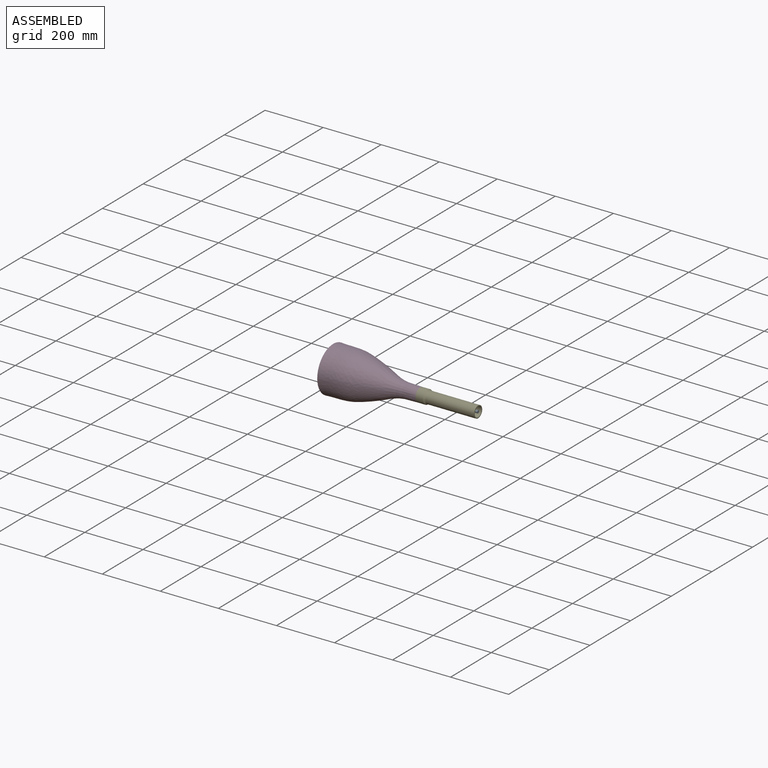
[diagram: assembled view]
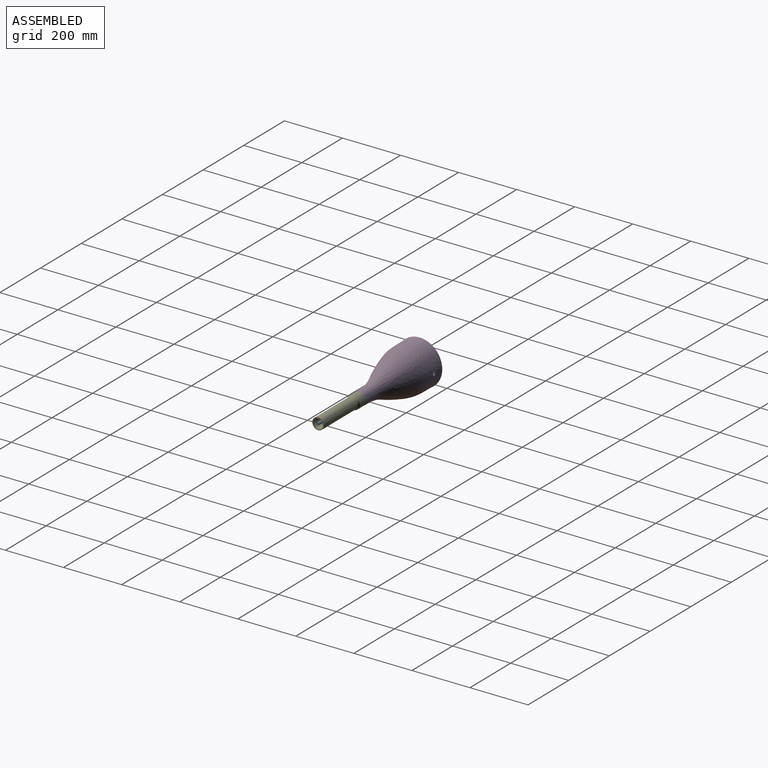
[diagram: assembled view, second angle]
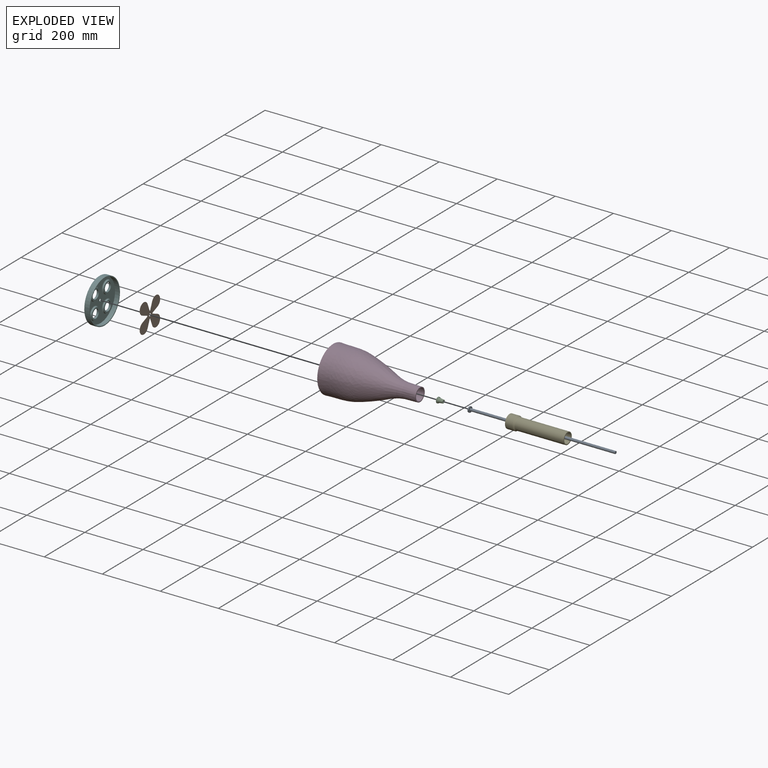
[diagram: exploded view]
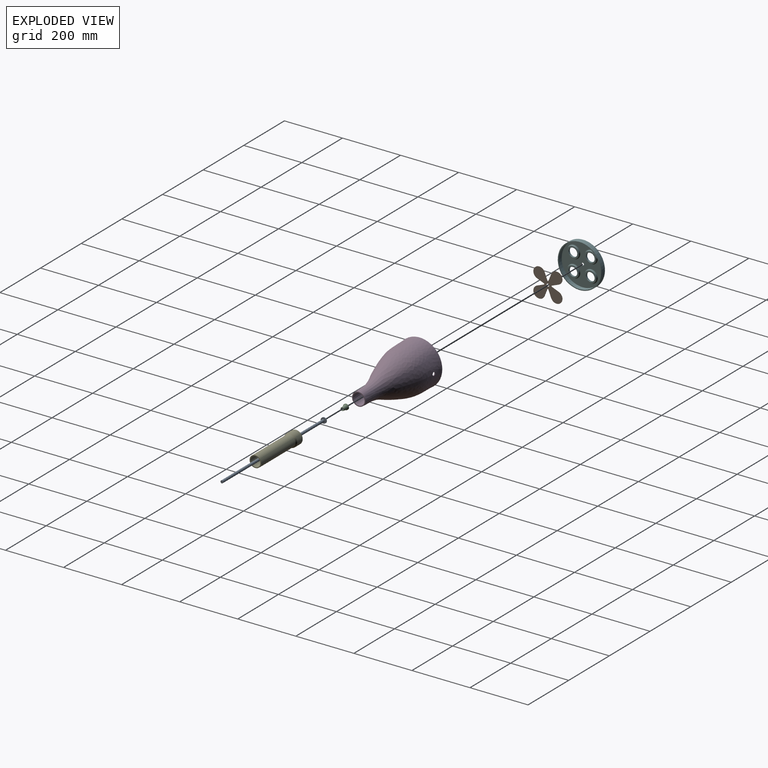
[diagram: exploded view, second angle]
ASSEMBLY  parts=6 mates=6
PART A: 6 faces, bbox 20.6x505x20.6 mm
  f0: plane 19x19mm, normal (0,1,0), area 219.9mm2, adj f1,f5
  f1: cylinder r=9.5mm len=19mm, axis (0,-1,0), area 179.1mm2, adj f0,f2
  f2: torus R=7.5mm, axis (0,-1,0), area 173.2mm2, adj f1,f3
  f3: plane 15x15mm, normal (0,-1,0), area 176.7mm2, adj f2
  f4: plane 9x9mm, normal (0,1,0), area 63.6mm2, adj f5
  f5: cylinder r=4.5mm len=500mm, axis (0,-1,0), area 14137.2mm2, adj f0,f4
PART B: 19 faces, bbox 0.5x100x100 mm
  f0: cylinder r=2mm len=3.71mm, axis (-1,0,0), area 2.4mm2, adj f1,f15,f17,f18
  f1: plane 23.85x9.59mm, normal (0,-0.93,-0.37), area 12.9mm2, adj f0,f2,f17,f18
  f2: cylinder r=20mm len=38.56mm, axis (-1,0,0), area 39.5mm2, adj f1,f3,f17,f18
  f3: plane 23.85x9.59mm, normal (0,0.37,0.93), area 12.9mm2, adj f2,f4,f17,f18
  f4: cylinder r=2mm len=3.71mm, axis (-1,0,0), area 2.4mm2, adj f3,f5,f17,f18
  f5: plane 23.85x9.59mm, normal (0,0.37,-0.93), area 12.9mm2, adj f4,f6,f17,f18
  f6: cylinder r=20mm len=38.56mm, axis (-1,0,0), area 39.5mm2, adj f5,f7,f17,f18
  f7: plane 23.85x9.59mm, normal (0,-0.93,0.37), area 12.9mm2, adj f6,f8,f17,f18
  f8: cylinder r=2mm len=3.71mm, axis (-1,0,0), area 2.4mm2, adj f7,f9,f17,f18
  f9: plane 23.85x9.59mm, normal (0,0.93,0.37), area 12.9mm2, adj f8,f10,f17,f18
  f10: cylinder r=20mm len=38.56mm, axis (-1,0,0), area 39.5mm2, adj f9,f11,f17,f18
  f11: plane 23.85x9.59mm, normal (0,-0.37,-0.93), area 12.9mm2, adj f10,f12,f17,f18
  f12: cylinder r=2mm len=3.71mm, axis (-1,0,0), area 2.4mm2, adj f11,f13,f17,f18
  f13: plane 23.85x9.59mm, normal (0,-0.37,0.93), area 12.9mm2, adj f12,f14,f17,f18
  f14: cylinder r=20mm len=38.56mm, axis (-1,0,0), area 39.5mm2, adj f13,f15,f17,f18
  f15: plane 23.85x9.59mm, normal (0,0.93,-0.37), area 12.9mm2, adj f0,f14,f17,f18
  f16: cylinder r=4.5mm len=9mm, axis (-1,0,0), area 14.1mm2, adj f17,f18
  f17: plane 100x100mm, normal (1,0,0), area 6649.4mm2, adj f0,f1,f2,f3,f4,f5,f6,f7
  f18: plane 100x100mm, normal (-1,0,0), area 6649.4mm2, adj f0,f1,f2,f3,f4,f5,f6,f7
PART C: 6 faces, bbox 20.6x20x20.6 mm
  f0: plane 19x19mm, normal (0,-1,0), area 219.9mm2, adj f1,f5
  f1: cylinder r=4.5mm len=20mm, axis (0,-1,0), area 565.5mm2, adj f0,f2
  f2: plane 11x11mm, normal (0,1,0), area 31.4mm2, adj f1,f3
  f3: cone r=7.52mm half-angle=7.5deg, axis (0,-1,0), area 629.6mm2, adj f2,f4
  f4: torus R=9.5mm, axis (0,-1,0), area 150mm2, adj f3,f5
  f5: cylinder r=9.5mm len=19mm, axis (0,-1,0), area 179.1mm2, adj f0,f4
PART D: 6 faces, bbox 156x300x156 mm
  f0: revolved ~299.8x155.99mm, area 102225.5mm2, adj f2,f3,f5
  f1: revolved ~150x150mm, area 58621.5mm2, adj f3,f4,f5
  f2: plane 46x46mm, normal (0,1,0), area 405.3mm2, adj f0,f4
  f3: cone r=77.99mm half-angle=86.2deg, axis (0,1,0), area 1441.9mm2, adj f0,f1
  f4: revolved ~170x120mm, area 37729.4mm2, adj f1,f2
  f5: cylinder r=6mm len=12mm, axis (0,0,-1), area 113.3mm2, adj f0,f1
PART E: 11 faces, bbox 49.8x200x49.8 mm
  f0: cylinder r=23mm len=46mm, axis (0,-1,0), area 3765.2mm2, adj f1,f10
  f1: plane 46x46mm, normal (0,-1,0), area 405.3mm2, adj f0,f2
  f2: cylinder r=20mm len=40mm, axis (0,-1,0), area 3274.1mm2, adj f1,f3
  f3: cone r=18.09mm half-angle=35deg, axis (0,-1,0), area 399.4mm2, adj f2,f4
  f4: torus R=23mm, axis (0,-1,0), area 399.9mm2, adj f3,f5
  f5: cylinder r=17mm len=167.77mm, axis (0,-1,0), area 17920.2mm2, adj f4,f6
  f6: plane 40x40mm, normal (0,1,0), area 348.7mm2, adj f5,f7
  f7: cylinder r=20mm len=167.77mm, axis (0,-1,0), area 21082.6mm2, adj f6,f8
  f8: torus R=23mm, axis (0,-1,0), area 232.4mm2, adj f7,f9
  f9: cone r=20.54mm half-angle=35deg, axis (0,-1,0), area 451mm2, adj f8,f10
  f10: torus R=20mm, axis (0,-1,0), area 262.7mm2, adj f0,f9
PART F: 26 faces, bbox 18x150x150 mm
  f0: plane 144x144mm, normal (1,0,0), area 9574.8mm2, adj f6,f8,f18,f19,f20,f21
  f1: cylinder r=75mm len=150mm, axis (-1,0,0), area 8482.3mm2, adj f7,f9
  f2: cylinder r=15mm len=30mm, axis (-1,0,0), area 565.5mm2, adj f17,f25
  f3: cylinder r=15mm len=30mm, axis (-1,0,0), area 565.5mm2, adj f11,f24
  f4: cylinder r=15mm len=30mm, axis (-1,0,0), area 565.5mm2, adj f15,f22
  f5: cylinder r=15mm len=30mm, axis (-1,0,0), area 565.5mm2, adj f13,f23
  f6: cylinder r=4.5mm len=9mm, axis (-1,0,0), area 84.8mm2, adj f0,f7
  f7: plane 150x150mm, normal (-1,0,0), area 13976.2mm2, adj f1,f6,f22,f23,f24,f25
  f8: cylinder r=72mm len=144mm, axis (-1,0,0), area 6785.8mm2, adj f0,f9
  f9: plane 150x150mm, normal (1,0,0), area 1385.4mm2, adj f1,f8
  f10: cylinder r=20mm len=40mm, axis (-1,0,0), area 251.3mm2, adj f11,f21
  f11: plane 40x40mm, normal (1,0,0), area 549.8mm2, adj f3,f10
  f12: cylinder r=20mm len=40mm, axis (-1,0,0), area 251.3mm2, adj f13,f20
  f13: plane 40x40mm, normal (1,0,0), area 549.8mm2, adj f5,f12
  f14: cylinder r=20mm len=40mm, axis (-1,0,0), area 251.3mm2, adj f15,f19
  f15: plane 40x40mm, normal (1,0,0), area 549.8mm2, adj f4,f14
  f16: cylinder r=20mm len=40mm, axis (-1,0,0), area 251.3mm2, adj f17,f18
  f17: plane 40x40mm, normal (1,0,0), area 549.8mm2, adj f2,f16
  f18: torus R=23mm, axis (1,0,0), area 624.5mm2, adj f0,f16
  f19: torus R=23mm, axis (1,0,0), area 624.5mm2, adj f0,f14
  f20: torus R=23mm, axis (1,0,0), area 624.5mm2, adj f0,f12
  f21: torus R=23mm, axis (1,0,0), area 624.5mm2, adj f0,f10
  f22: torus R=17mm, axis (1,0,0), area 310.4mm2, adj f4,f7
  f23: torus R=17mm, axis (1,0,0), area 310.4mm2, adj f5,f7
  f24: torus R=17mm, axis (1,0,0), area 310.4mm2, adj f3,f7
  f25: torus R=17mm, axis (1,0,0), area 310.4mm2, adj f2,f7
PLACE A rot(axis=(-0.58,-0.58,-0.58),120deg) t=(453.75,-455.83,-70.87)mm
PLACE B t=(461.75,-455.83,-70.87)mm
PLACE C rot(axis=(0,0,-1),90deg) t=(462.25,-455.83,-70.87)mm
PLACE D rot(axis=(-0.58,-0.58,-0.58),120deg) t=(453.75,-455.83,-70.87)mm
PLACE E rot(axis=(-0.58,-0.58,-0.58),120deg) t=(753.75,-455.83,-70.87)mm
PLACE F t=(453.75,-455.83,-70.87)mm
MATE slider F.f6 <-> B.f16  axis (1,0,0) through (456.75,-455.83,-70.87)mm
MATE fastened F.f5 <-> B.f10  axis (1,0,0) through (461.75,-485.83,-40.87)mm
MATE fastened D.f3 <-> E.f0  axis (-1,0,0) through (753.75,-455.83,-70.87)mm
MATE fastened A.f1 <-> F.f6  axis (-1,0,0) through (453.75,-455.83,-70.87)mm
MATE fastened C.f1 <-> B.f16  axis (-1,0,0) through (462.25,-455.83,-70.87)mm
MATE fastened D.f3 <-> F.f6  axis (-1,0,0) through (453.75,-455.83,-70.87)mm
